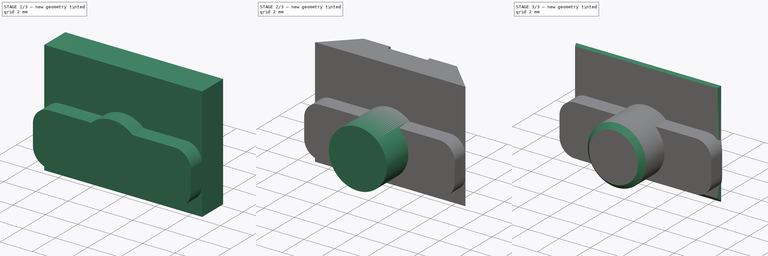
[diagram: build sequence overview — one tinted view per stage of 3, left to right]
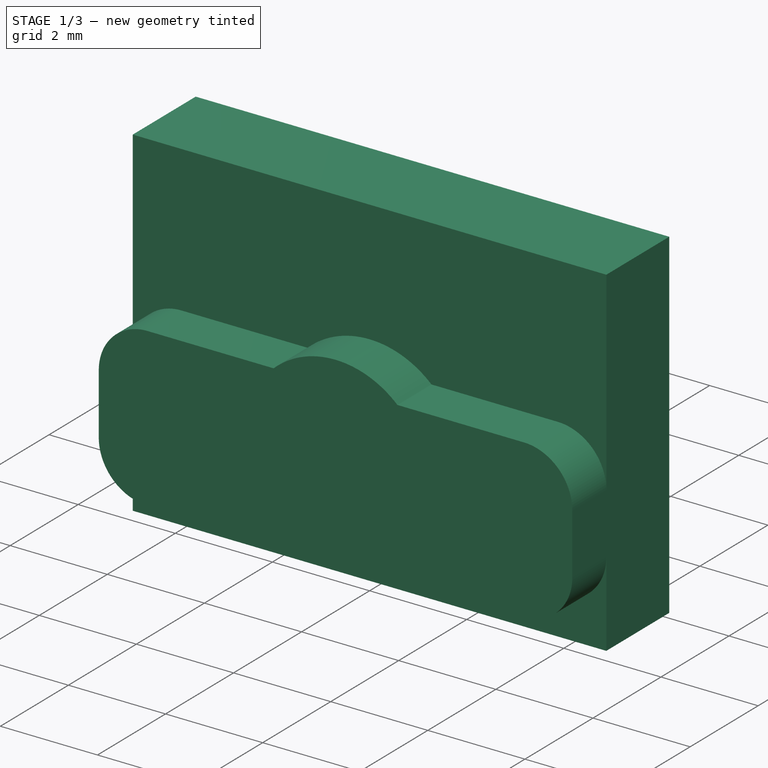
[diagram: stage 1 of 3 — iso view after this stage's code; geometry added in this stage tinted green]
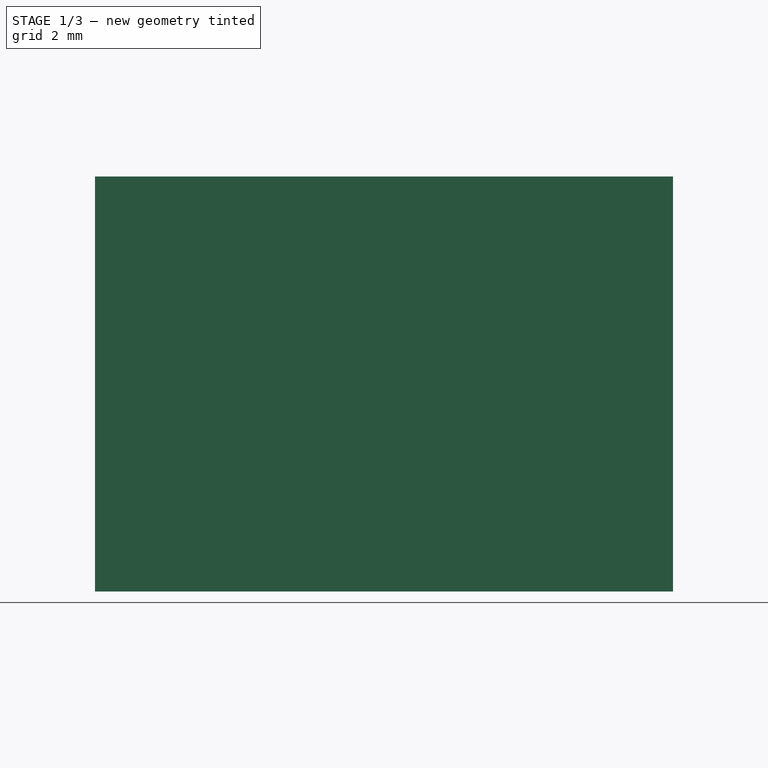
[diagram: stage 1 of 3 — front view after this stage's code; geometry added in this stage tinted green]
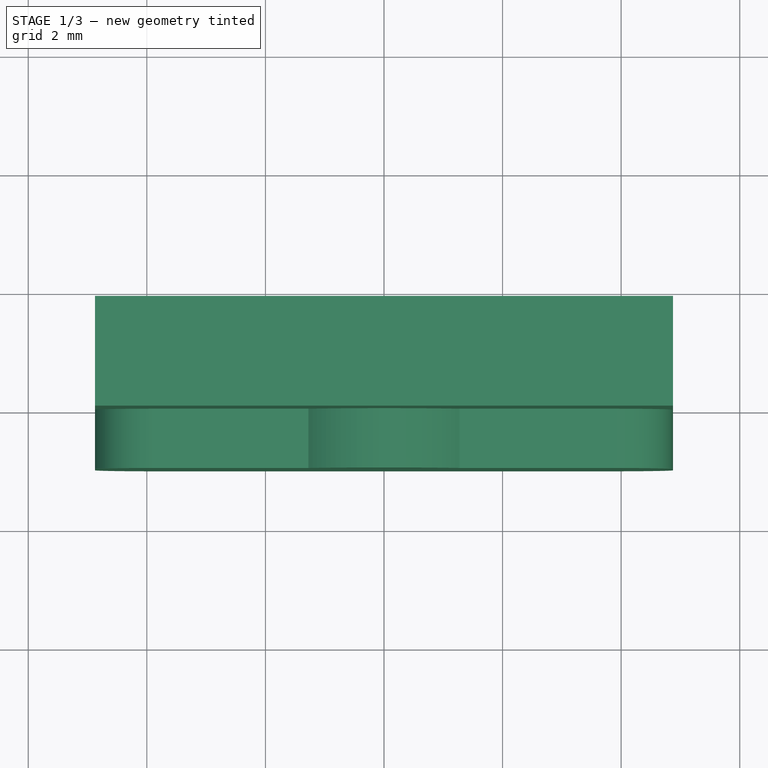
[diagram: stage 1 of 3 — top view after this stage's code; geometry added in this stage tinted green]
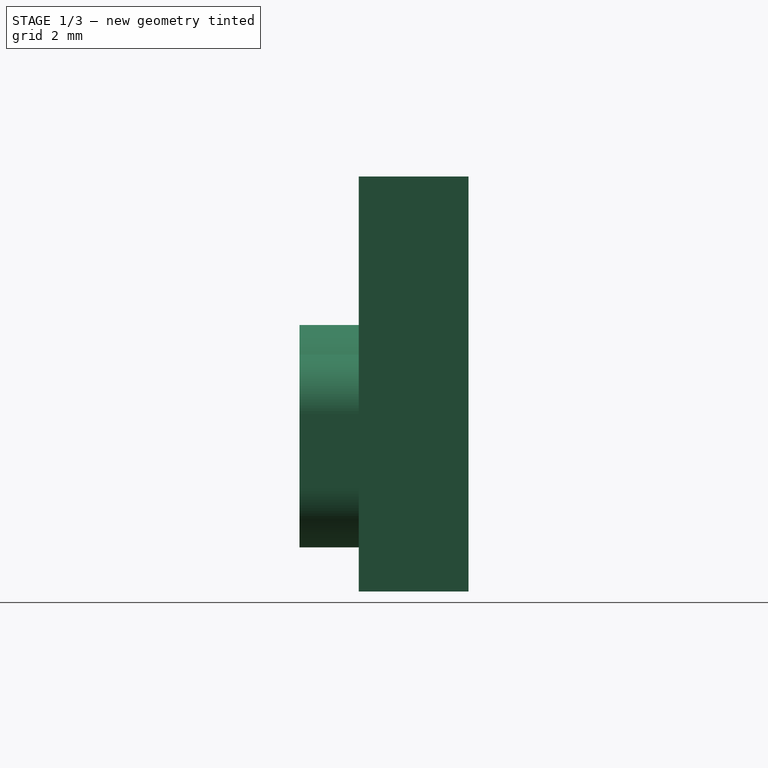
[diagram: stage 1 of 3 — right view after this stage's code; geometry added in this stage tinted green]
FCSTD DOCUMENT  (FreeCAD 1.0R38641 +468 (Git))
Label: PLASTIC-MAPMODE
License: All rights reserved
LicenseURL: http://en.wikipedia.org/wiki/All_rights_reserved
objects: Sketcher::SketchObject×5, PartDesign::Pad×3, PartDesign::Pocket×2, PartDesign::Chamfer×1, PartDesign::Body×1
note: 29 computed .brp shape members not serialized (recipe doc carries the construction recipe); baked Part::Feature solids carry a one-line shape summary decoded from their .brp

FEATURE [Sketcher::SketchObject] Sketch010
  ArcFitTolerance = 0
  AttachmentSupport = -> [XZ_Plane003]
  FullyConstrained = true
  MakeInternals = false
  MapMode = 5
  Placement = pos=(0,0,0) rot=(1,0,0;1.5708rad)
  sketch-geometry (4):
    g0: LineSegment StartX=4.875 StartY=-2 StartZ=0 EndX=-4.875 EndY=-2 EndZ=0
    g1: LineSegment StartX=4.875 StartY=-2 StartZ=0 EndX=4.875 EndY=-9 EndZ=0
    g2: LineSegment StartX=-4.875 StartY=-2 StartZ=0 EndX=-4.875 EndY=-9 EndZ=0
    g3: LineSegment StartX=4.875 StartY=-9 StartZ=0 EndX=-4.875 EndY=-9 EndZ=0
  constraints (12):
    c: Horizontal(g0)
    c: DistanceY(g0,g-1) = 2
    c: Coincident(g1,g0)
    c: Vertical(g1)
    c: Coincident(g2,g0)
    c: Vertical(g2)
    c: Coincident(g3,g1)
    c: Coincident(g3,g2)
    c: Horizontal(g3)
    c: PointOnObject(g-3,g1)
    c: PointOnObject(g-3,g2)
    c: DistanceY(g2,g2) = 7
FEATURE [Sketcher::SketchObject] Sketch012
  ArcFitTolerance = 0
  AttachmentOffset = pos=(0,0,1) rot=(0,0,1;0rad)
  AttachmentSupport = -> [XZ_Plane003]
  FullyConstrained = true
  MakeInternals = false
  MapMode = 5
  Placement = pos=(0,-1,2e-16) rot=(1,0,0;1.5708rad)
  sketch-geometry (1):
    g0: Circle CenterX=0 CenterY=-6.38 CenterZ=0 NormalX=0 NormalY=0 NormalZ=1 AngleXU=0 Radius=1.875
  constraints (3):
    c: PointOnObject(g0,g-2)
    c: DistanceY(g-1,g0) = -6.38
    c: Diameter(g0) = 3.75
FEATURE [Sketcher::SketchObject] Sketch013
  ArcFitTolerance = 0
  AttachmentSupport = -> [XZ_Plane003]
  FullyConstrained = true
  MakeInternals = false
  MapMode = 5
  Placement = pos=(0,0,0) rot=(1,0,0;1.5708rad)
  sketch-geometry (21):
    g0: LineSegment [constr] StartX=-4.875 StartY=-4.505 StartZ=0 EndX=4.875 EndY=-4.505 EndZ=0
    g1: LineSegment [constr] StartX=4.875 StartY=-4.505 StartZ=0 EndX=4.875 EndY=-8.255 EndZ=0
    g2: LineSegment [constr] StartX=4.875 StartY=-8.255 StartZ=0 EndX=-4.875 EndY=-8.255 EndZ=0
    g3: LineSegment [constr] StartX=-4.875 StartY=-8.255 StartZ=0 EndX=-4.875 EndY=-4.505 EndZ=0
    g4: LineSegment [constr] StartX=0 StartY=0 StartZ=0 EndX=-4.875 EndY=-4.505 EndZ=0
    g5: LineSegment [constr] StartX=0 StartY=0 StartZ=0 EndX=4.875 EndY=-4.505 EndZ=0
    g6: LineSegment [constr] StartX=-4.875 StartY=-4.505 StartZ=0 EndX=0 EndY=-6.38 EndZ=0
    g7: LineSegment [constr] StartX=-4.875 StartY=-8.255 StartZ=0 EndX=0 EndY=-6.38 EndZ=0
    g8: ArcOfCircle CenterX=0 CenterY=-6.38 CenterZ=0 NormalX=0 NormalY=0 NormalZ=1 AngleXU=0 Radius=1.875 StartAngle=0.823212 EndAngle=2.31838
    g9: LineSegment StartX=-4.875 StartY=-6.005 StartZ=0 EndX=-4.875 EndY=-7.255 EndZ=0
    g10: LineSegment StartX=-3.875 StartY=-8.255 StartZ=0 EndX=3.875 EndY=-8.255 EndZ=0
    g11: LineSegment StartX=4.875 StartY=-7.255 StartZ=0 EndX=4.875 EndY=-6.005 EndZ=0
    g12: ArcOfCircle CenterX=-3.875 CenterY=-6.005 CenterZ=0 NormalX=0 NormalY=0 NormalZ=1 AngleXU=0 Radius=1 StartAngle=1.5708 EndAngle=3.14159
    g13: ArcOfCircle CenterX=-3.875 CenterY=-7.255 CenterZ=0 NormalX=0 NormalY=0 NormalZ=1 AngleXU=0 Radius=1 StartAngle=3.14159 EndAngle=4.71239
    g14: ArcOfCircle CenterX=3.875 CenterY=-7.255 CenterZ=0 NormalX=0 NormalY=0 NormalZ=1 AngleXU=0 Radius=1 StartAngle=4.71239 EndAngle=6.28319
    g15: ArcOfCircle CenterX=3.875 CenterY=-6.005 CenterZ=0 NormalX=0 NormalY=0 NormalZ=1 AngleXU=0 Radius=1 StartAngle=0 EndAngle=1.5708
    g16: GeomPoint [constr] X=-4.875 Y=-5.005 Z=0
    g17: GeomPoint [constr] X=4.875 Y=-8.255 Z=0
    g18: LineSegment StartX=-1.27475 StartY=-5.005 StartZ=0 EndX=-3.875 EndY=-5.005 EndZ=0
    g19: LineSegment StartX=3.875 StartY=-5.005 StartZ=0 EndX=1.27475 EndY=-5.005 EndZ=0
    g20: LineSegment [constr] StartX=1.27475 StartY=-5.005 StartZ=0 EndX=-1.27475 EndY=-5.005 EndZ=0
  constraints (53):
    c: Coincident(g0,g1)
    c: Coincident(g1,g2)
    c: Coincident(g2,g3)
    c: Coincident(g3,g0)
    c: Horizontal(g0)
    c: Horizontal(g2)
    c: Vertical(g1)
    c: Vertical(g3)
    c: DistanceX(g0,g0) = 9.75
    c: DistanceY(g3,g3) = 3.75
    c: Coincident(g4,g-1)
    c: Coincident(g4,g0)
    c: Coincident(g5,g-1)
    c: Coincident(g5,g0)
    c: Equal(g5,g4)
    c: Coincident(g6,g0)
    c: PointOnObject(g6,g-2)
    c: Coincident(g7,g2)
    c: Coincident(g7,g6)
    c: Equal(g7,g6)
    c: DistanceY(g6,g4) = 6.38
    c: Coincident(g8,g6)
    c: Tangent(g8,g0)
    c: Tangent(g9,g12) = -1.5708
    c: Tangent(g9,g13) = -1.5708
    c: Tangent(g10,g13) = -1.5708
    c: Tangent(g10,g14) = -1.5708
    c: Tangent(g11,g14) = -1.5708
    c: Tangent(g11,g15) = -1.5708
    c: Vertical(g9)
    c: Vertical(g11)
    c: Horizontal(g10)
    c: Equal(g12,g13)
    c: Equal(g13,g14)
    c: Equal(g14,g15)
    c: PointOnObject(g16,g9)
    c: PointOnObject(g17,g10)
    c: PointOnObject(g17,g11)
    c: Coincident(g20,g18)
    c: Horizontal(g18)
    c: Coincident(g19,g20)
    c: Horizontal(g19)
    c: Horizontal(g20)
    c: PointOnObject(g16,g19)
    c: Coincident(g8,g19)
    c: Coincident(g8,g18)
    c: Tangent(g18,g12) = -1.5708
    c: Tangent(g19,g15) = -1.5708
    c: Radius(g12) = 1
    c: PointOnObject(g10,g2)
    c: PointOnObject(g9,g3)
    c: PointOnObject(g11,g1)
    c: DistanceY(g10,g12) = 3.25
FEATURE [PartDesign::Pad] Pad006
  AllowMultiFace = false
  Direction = (0,-1,2e-16)
  Length = 1
  Length2 = 100
  Placement = pos=(0,0,0) rot=(1,0,0;1.5708rad)
  Profile = -> Sketch013
  ReferenceAxis = -> Sketch013 [N_Axis]
  Refine = true
  Suppressed = false
  Type = 0
FEATURE [PartDesign::Pad] Pad007
  AllowMultiFace = false
  BaseFeature = -> Pad006
  Direction = (0,-1,2e-16)
  Length = 1.85
  Length2 = 100
  Placement = pos=(0,0,0) rot=(1,0,0;1.5708rad)
  Profile = -> Sketch010
  ReferenceAxis = -> Sketch010 [N_Axis]
  Refine = true
  Reversed = true
  Suppressed = false
  Type = 0
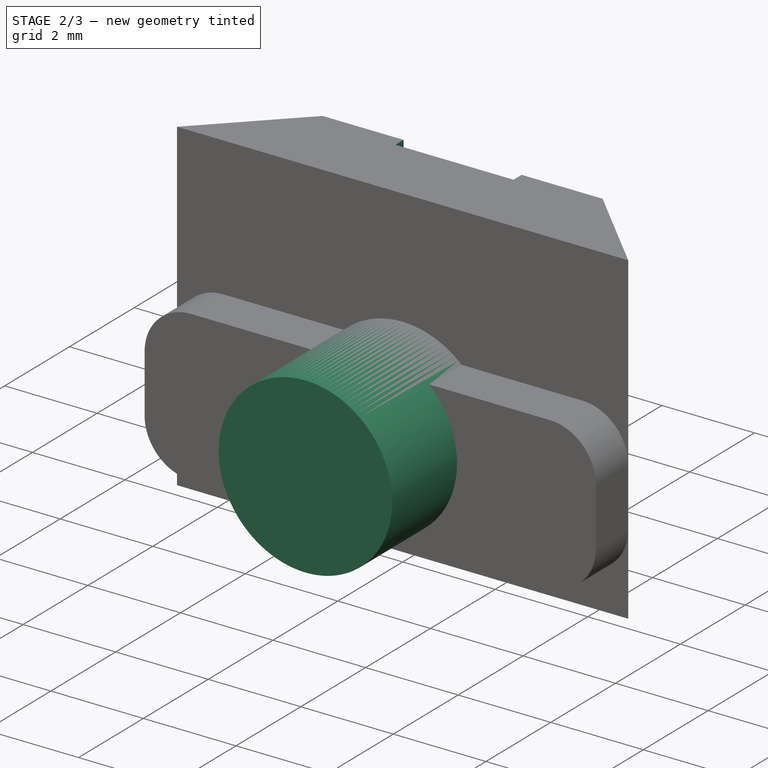
[diagram: stage 2 of 3 — iso view after this stage's code; geometry added in this stage tinted green]
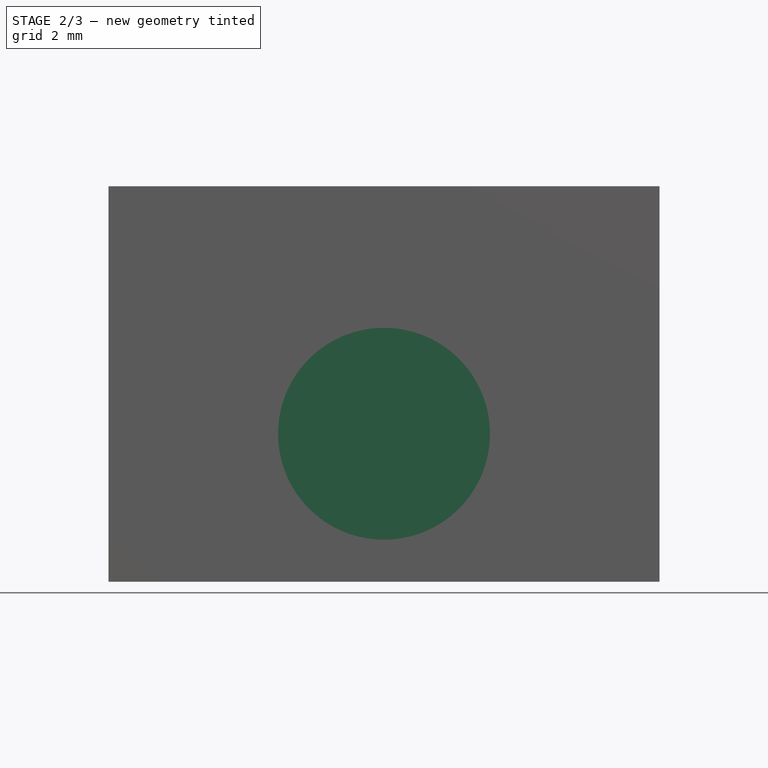
[diagram: stage 2 of 3 — front view after this stage's code; geometry added in this stage tinted green]
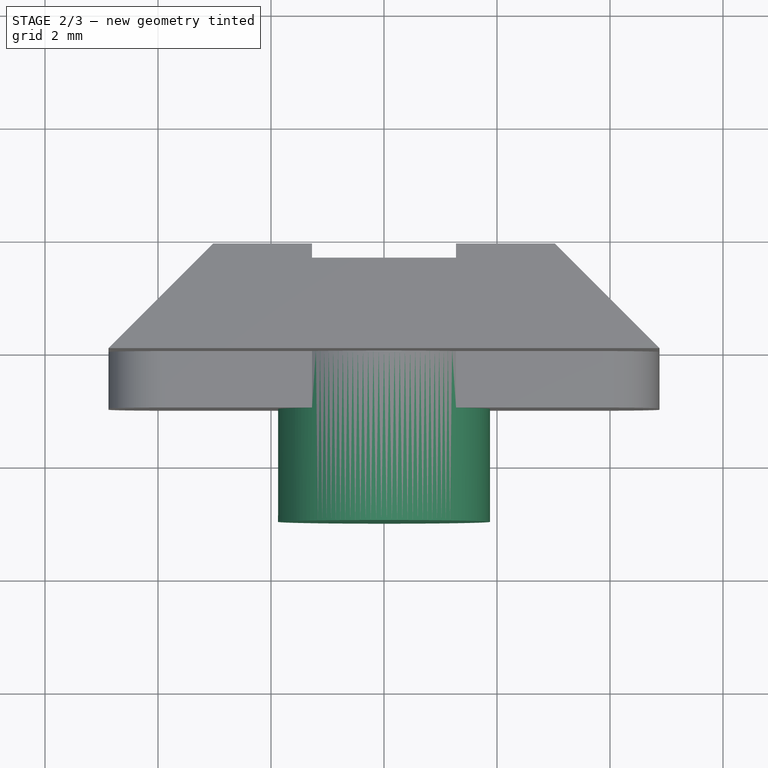
[diagram: stage 2 of 3 — top view after this stage's code; geometry added in this stage tinted green]
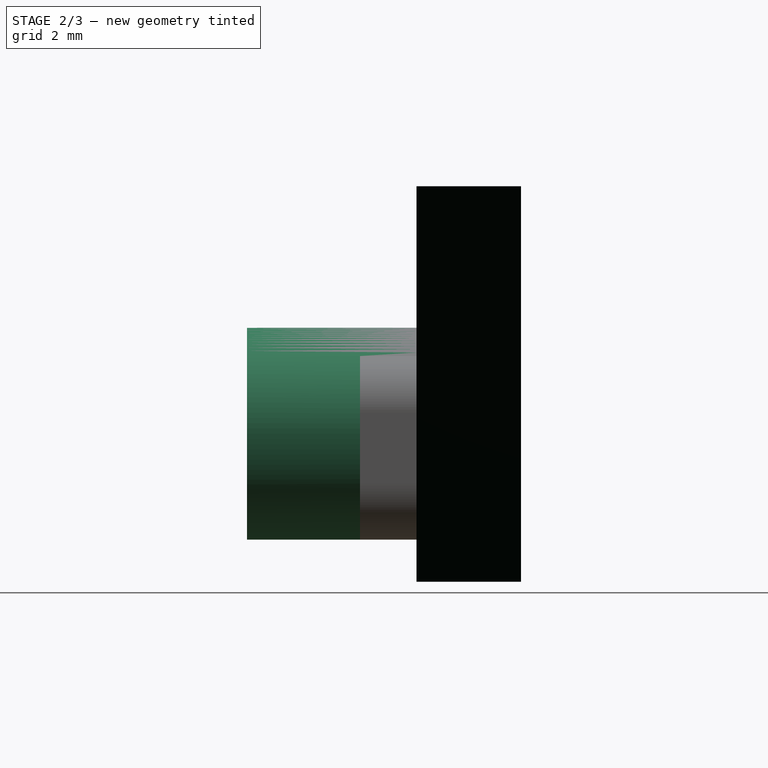
[diagram: stage 2 of 3 — right view after this stage's code; geometry added in this stage tinted green]
FEATURE [PartDesign::Pad] Pad005
  AllowMultiFace = false
  BaseFeature = -> Pad007
  Direction = (0,-1,2e-16)
  Length = 2
  Length2 = 100
  Placement = pos=(0,0,0) rot=(1,0,0;1.5708rad)
  Profile = -> Sketch012
  ReferenceAxis = -> Sketch012 [N_Axis]
  Refine = true
  Suppressed = false
  Type = 0
FEATURE [Sketcher::SketchObject] Sketch
  ArcFitTolerance = 1e-06
  AttachmentSupport = -> [XY_Plane003]
  FullyConstrained = true
  MakeInternals = false
  MapMode = 5
  sketch-geometry (11):
    g0: LineSegment StartX=-1.275 StartY=3.6 StartZ=0 EndX=-1.275 EndY=1.6 EndZ=0
    g1: LineSegment StartX=-1.275 StartY=1.6 StartZ=0 EndX=1.275 EndY=1.6 EndZ=0
    g2: LineSegment StartX=1.275 StartY=1.6 StartZ=0 EndX=1.275 EndY=3.6 EndZ=0
    g3: LineSegment [constr] StartX=1.275 StartY=3.6 StartZ=0 EndX=-1.275 EndY=3.6 EndZ=0
    g4: LineSegment [constr] StartX=-1.275 StartY=1.6 StartZ=0 EndX=0 EndY=0 EndZ=0
    g5: LineSegment [constr] StartX=1.275 StartY=1.6 StartZ=0 EndX=0 EndY=0 EndZ=0
    g6: LineSegment StartX=-4.875 StartY=0 StartZ=0 EndX=-1.275 EndY=3.6 EndZ=0
    g7: LineSegment StartX=1.275 StartY=3.6 StartZ=0 EndX=4.875 EndY=0 EndZ=0
    g8: LineSegment StartX=-4.875 StartY=0 StartZ=0 EndX=-4.875 EndY=5 EndZ=0
    g9: LineSegment StartX=-4.875 StartY=5 StartZ=0 EndX=4.875 EndY=5 EndZ=0
    g10: LineSegment StartX=4.875 StartY=5 StartZ=0 EndX=4.875 EndY=0 EndZ=0
  constraints (30):
    c: Coincident(g0,g1)
    c: Coincident(g1,g2)
    c: Coincident(g2,g3)
    c: Coincident(g3,g0)
    c: Vertical(g0)
    c: Vertical(g2)
    c: Horizontal(g1)
    c: Horizontal(g3)
    c: Coincident(g4,g0)
    c: Coincident(g4,g-1)
    c: Coincident(g5,g1)
    c: Coincident(g5,g4)
    c: Equal(g5,g4)
    c: DistanceY(g0,g0) = 2
    c: DistanceY(g4,g4) = 1.6
    c: PointOnObject(g6,g-1)
    c: Coincident(g6,g0)
    c: Coincident(g7,g2)
    c: PointOnObject(g7,g-1)
    c: Coincident(g6,g8)
    c: Vertical(g8)
    c: Coincident(g8,g9)
    c: Horizontal(g9)
    c: Coincident(g9,g10)
    c: Coincident(g10,g7)
    c: Vertical(g10)
    c: Equal(g6,g7)
    c: Angle(g6,g8) = 0.785398
    c: DistanceX(g9,g9) = 9.75
    c: DistanceY(g8,g8) = 5
FEATURE [PartDesign::Pocket] Pocket
  BaseFeature = -> Pad005
  Direction = (0,0,-1)
  Length = 5
  Length2 = 5
  Placement = pos=(0,0,0) rot=(1,0,0;1.5708rad)
  Profile = -> Sketch
  ReferenceAxis = -> Sketch [N_Axis]
  Suppressed = false
  Type = 1
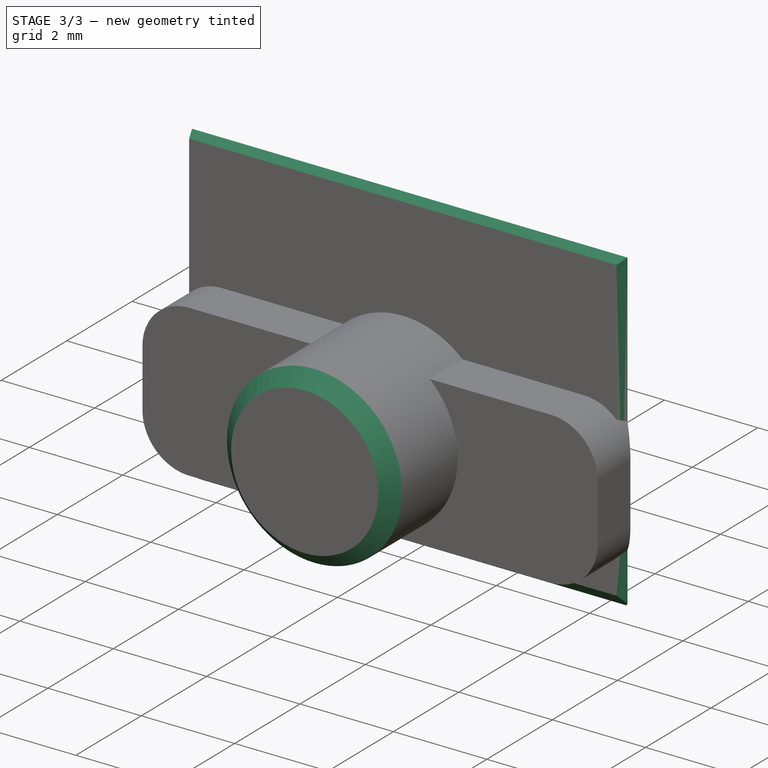
[diagram: stage 3 of 3 — iso view after this stage's code; geometry added in this stage tinted green]
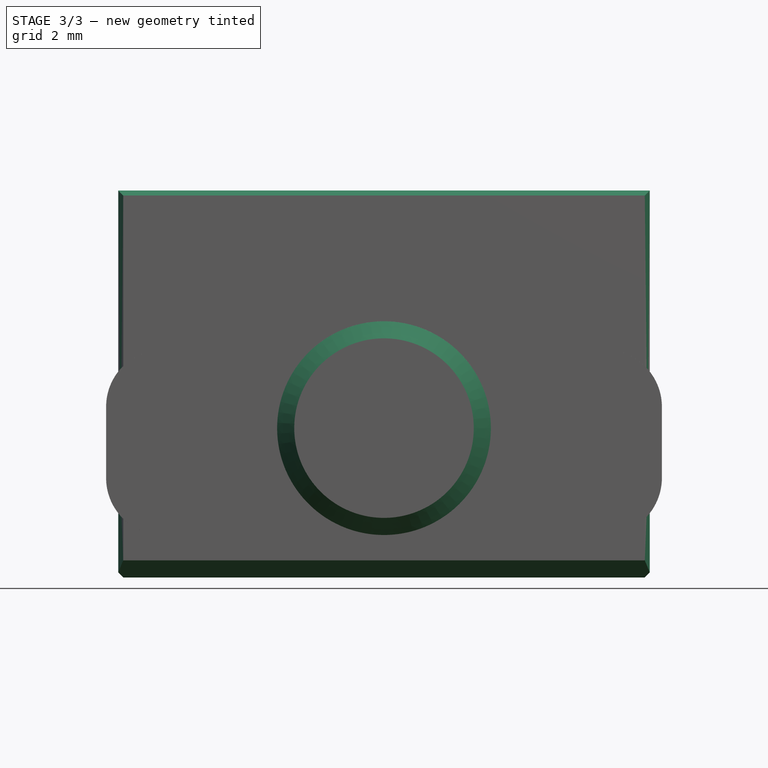
[diagram: stage 3 of 3 — front view after this stage's code; geometry added in this stage tinted green]
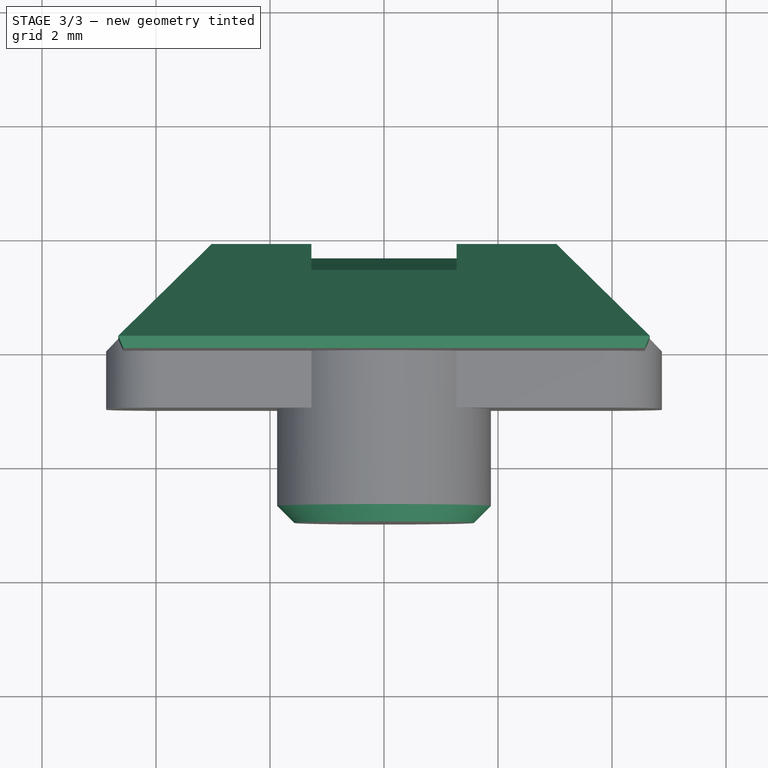
[diagram: stage 3 of 3 — top view after this stage's code; geometry added in this stage tinted green]
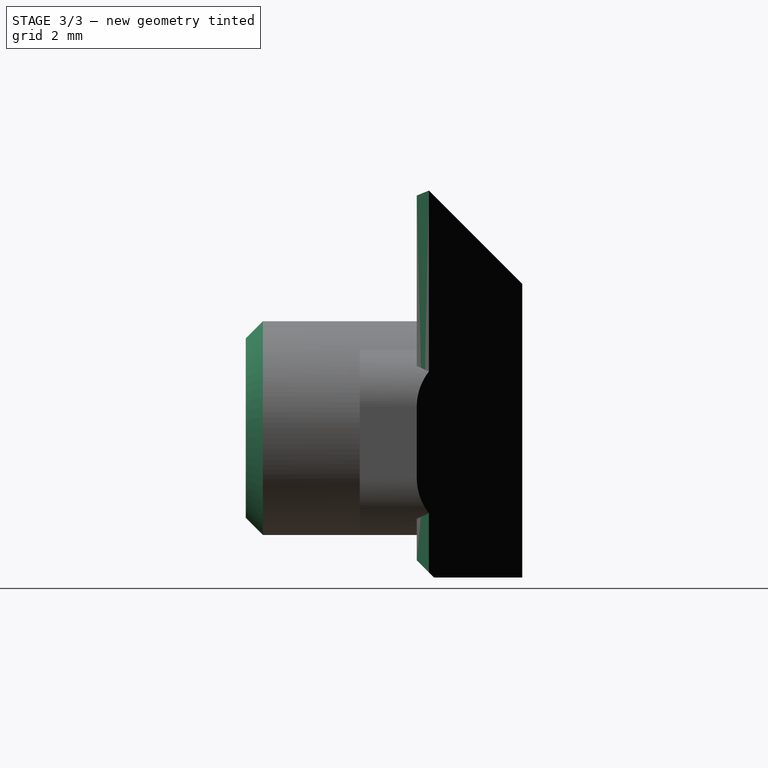
[diagram: stage 3 of 3 — right view after this stage's code; geometry added in this stage tinted green]
FEATURE [Sketcher::SketchObject] Sketch014
  ArcFitTolerance = 1e-06
  AttachmentSupport = -> [YZ_Plane003]
  FullyConstrained = true
  MakeInternals = false
  MapMode = 5
  Placement = pos=(0,0,0) rot=(0.57735,0.57735,0.57735;2.0944rad)
  sketch-geometry (4):
    g0: LineSegment StartX=0 StartY=0 StartZ=0 EndX=0 EndY=-2 EndZ=0
    g1: LineSegment StartX=0 StartY=-2 StartZ=0 EndX=4 EndY=-6 EndZ=0
    g2: LineSegment StartX=4 StartY=-6 StartZ=0 EndX=4 EndY=0 EndZ=0
    g3: LineSegment StartX=4 StartY=0 StartZ=0 EndX=0 EndY=0 EndZ=0
  constraints (11):
    c: Coincident(g-1,g0)
    c: PointOnObject(g0,g-2)
    c: Coincident(g0,g1)
    c: Coincident(g1,g2)
    c: PointOnObject(g2,g-1)
    c: Coincident(g2,g3)
    c: Coincident(g3,g0)
    c: Vertical(g2)
    c: Angle(g2,g1) = 0.785398
    c: DistanceY(g0,g0) = 2
    c: DistanceX(g3,g3) = 4
FEATURE [PartDesign::Pocket] Pocket001
  BaseFeature = -> Pocket
  Direction = (-1,0,0)
  Length = 5
  Length2 = 5
  Midplane = true
  Placement = pos=(0,0,0) rot=(1,0,0;1.5708rad)
  Profile = -> Sketch014
  ReferenceAxis = -> Sketch014 [N_Axis]
  Suppressed = false
  Type = 1
FEATURE [PartDesign::Chamfer] Chamfer
  Angle = 45
  Base = -> Pocket001 [Edge61,Edge22,Edge17,Edge10,Edge28,Edge9,Edge1,Edge39]
  BaseFeature = -> Pocket001
  ChamferType = 0
  FlipDirection = false
  Placement = pos=(0,0,0) rot=(1,0,0;1.5708rad)
  Size = 0.3
  Size2 = 1
  SupportTransform = false
  Suppressed = false
  UseAllEdges = false
FEATURE [PartDesign::Body] Body003  label="PLASTIC-MAPMODE"
  AllowCompound = false
  Group = -> [Sketch013,Pad006,Sketch010,Pad007,Sketch012,Pad005,Sketch,Pocket,Sketch014,Pocket001,Chamfer]
  Origin = -> Origin003
  Tip = -> Chamfer
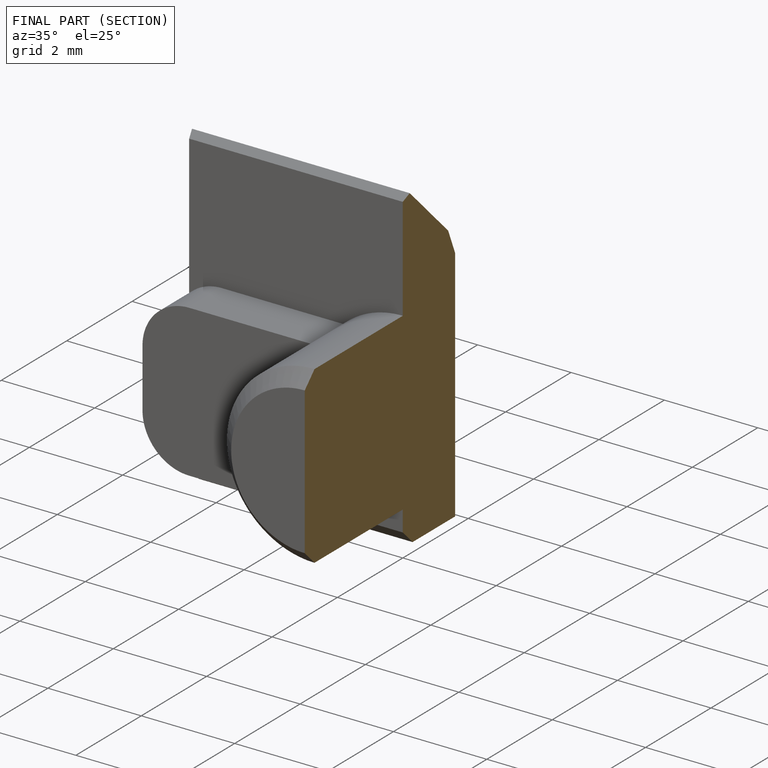
[diagram: finished part — half-section view (interior)]
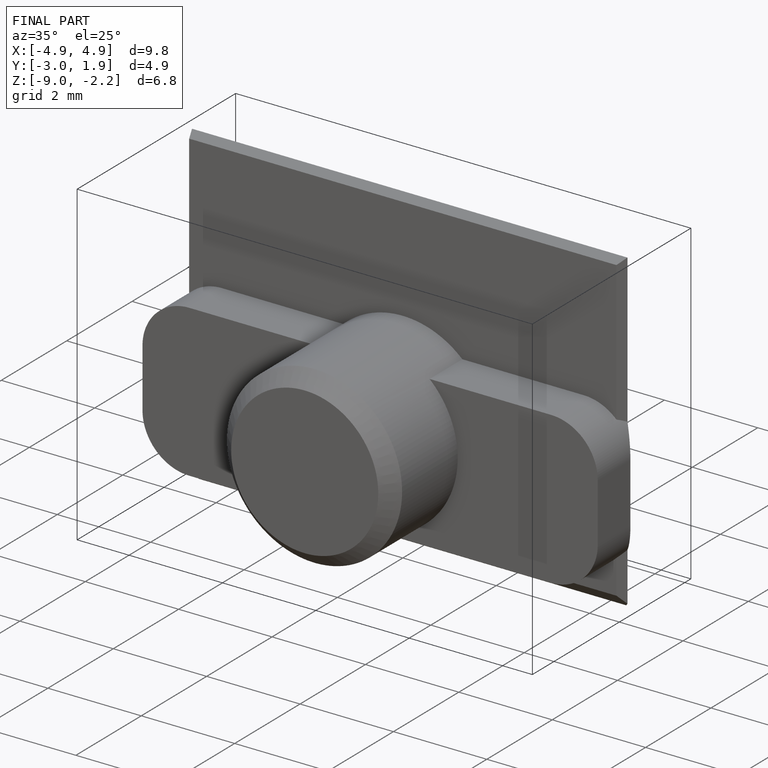
[diagram: finished part — iso view with bounding-box wireframe]
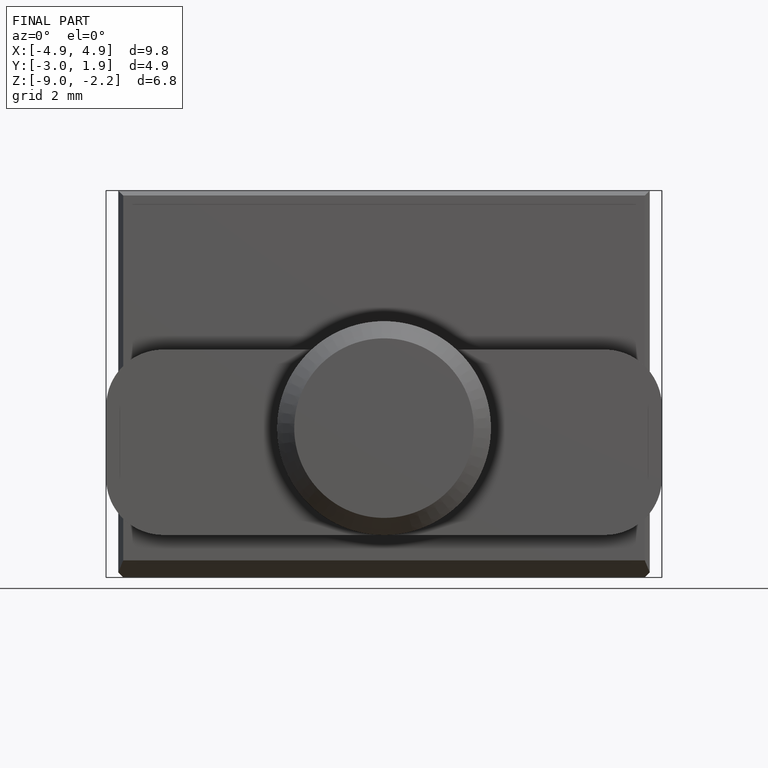
[diagram: finished part — front view with bounding-box wireframe]
